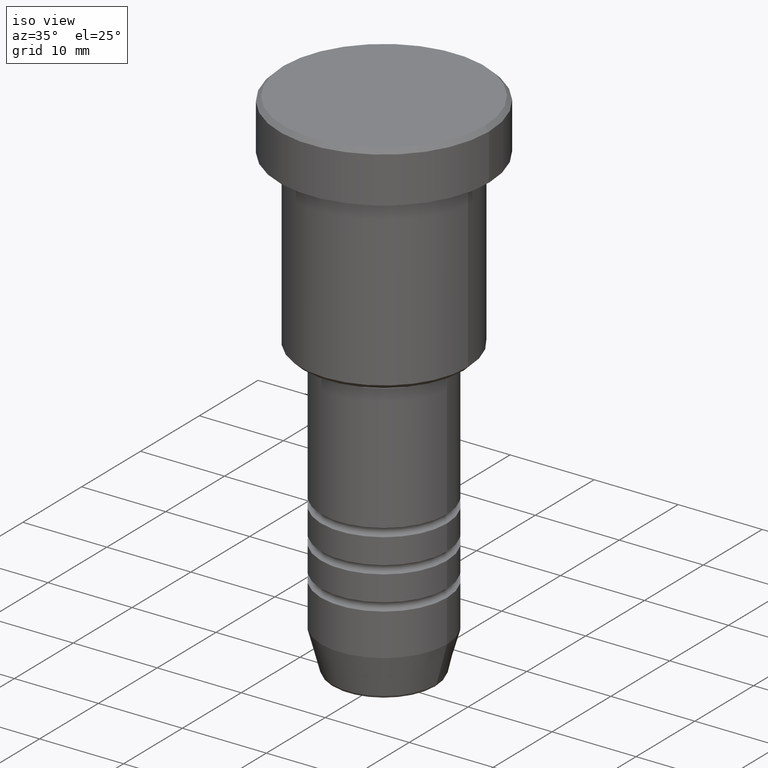
[diagram: clean part render]
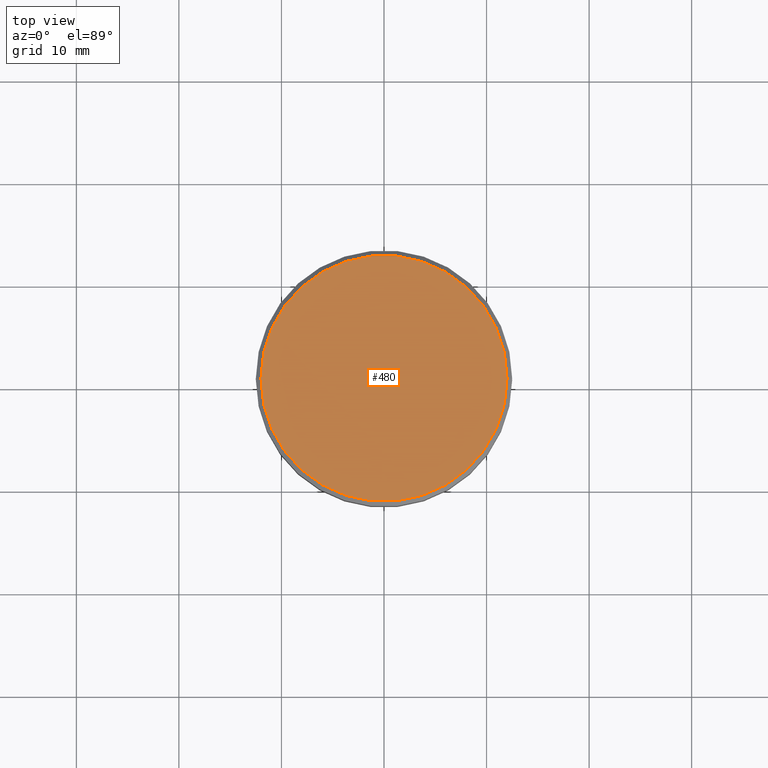
[diagram: tour spotlight — one face highlighted and labeled with its STEP entity id]
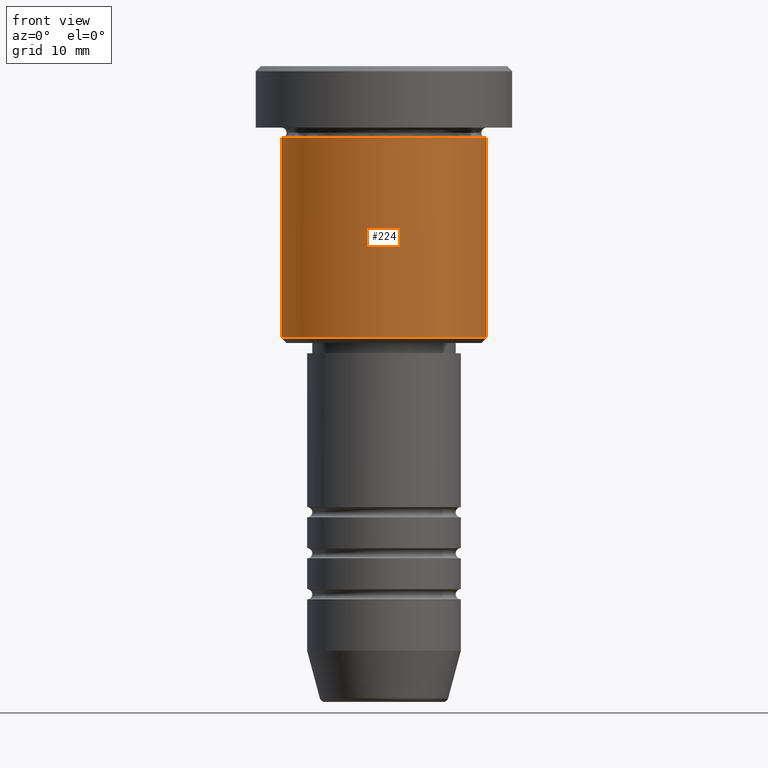
[diagram: tour spotlight — one face highlighted and labeled with its STEP entity id]
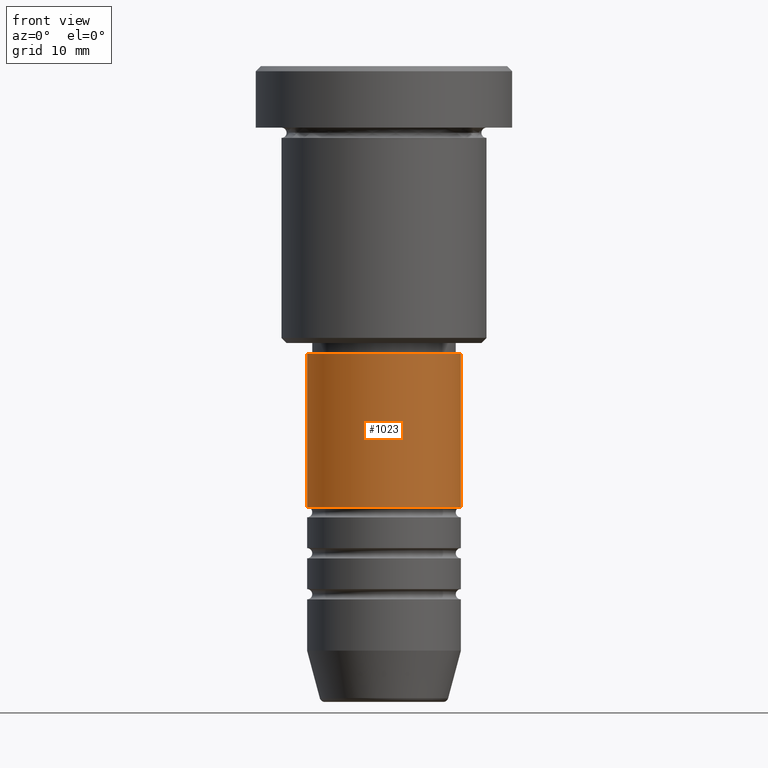
[diagram: tour spotlight — one face highlighted and labeled with its STEP entity id]
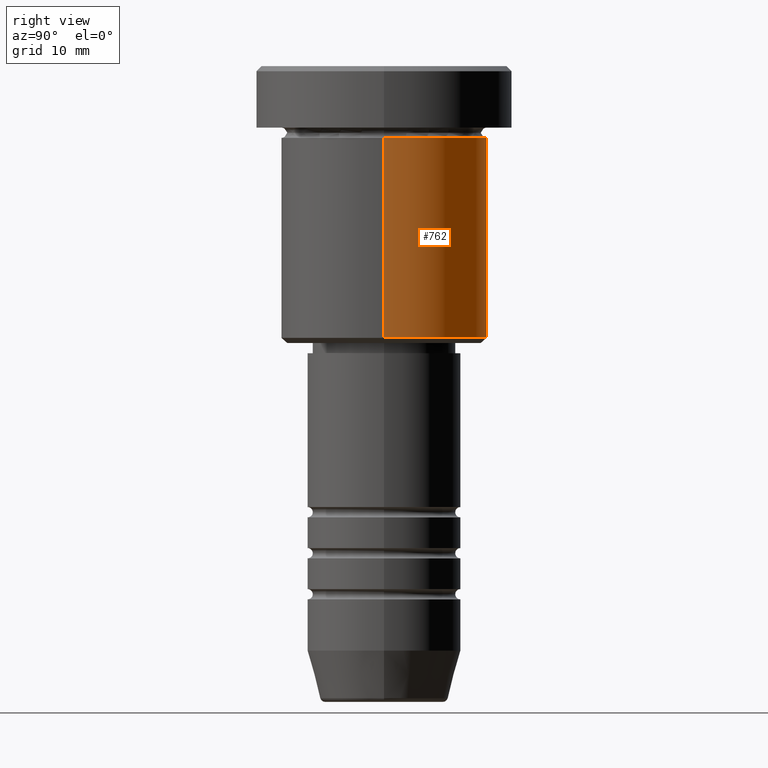
[diagram: tour spotlight — one face highlighted and labeled with its STEP entity id]
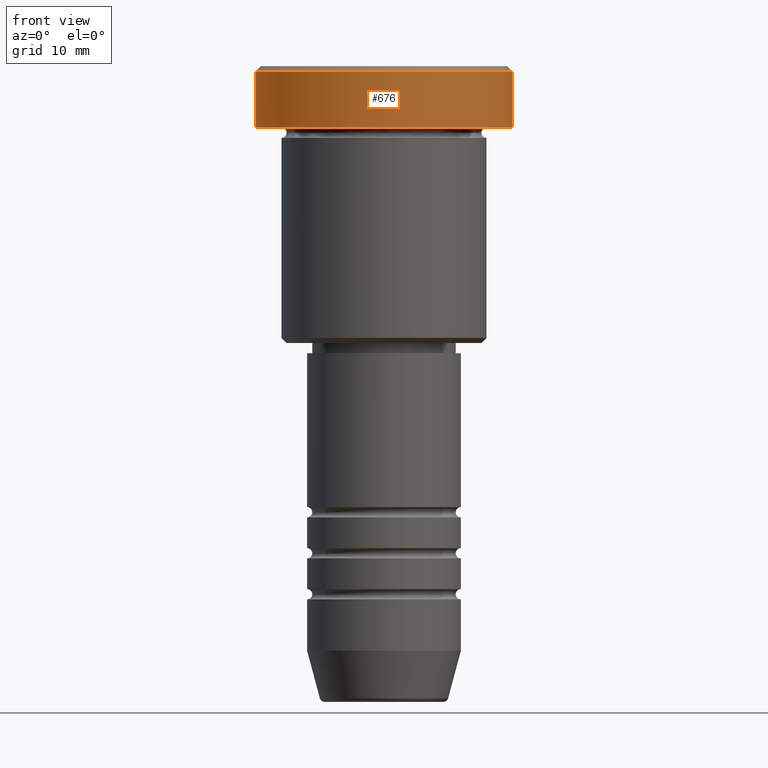
[diagram: tour spotlight — one face highlighted and labeled with its STEP entity id]
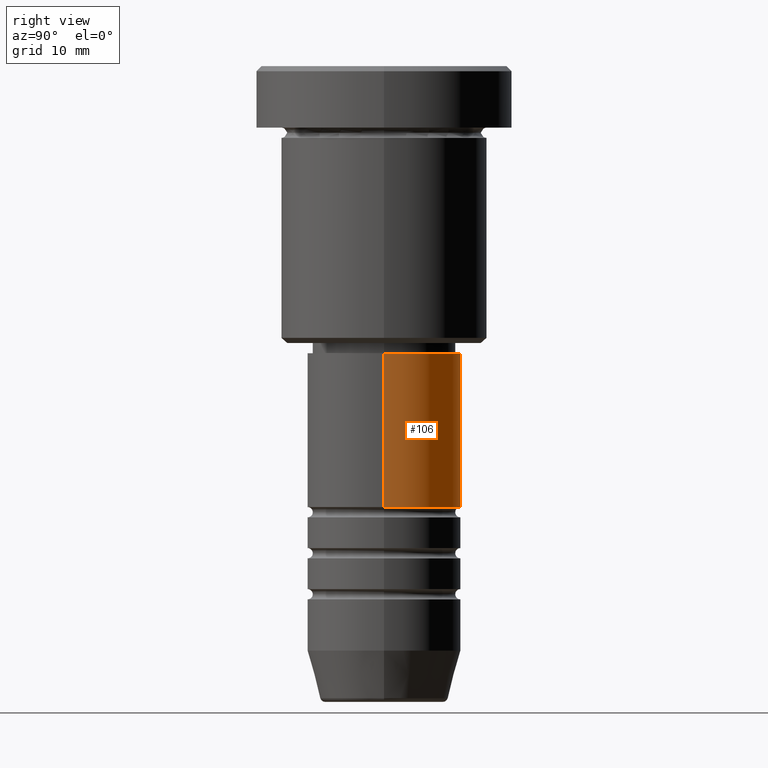
[diagram: tour spotlight — one face highlighted and labeled with its STEP entity id]
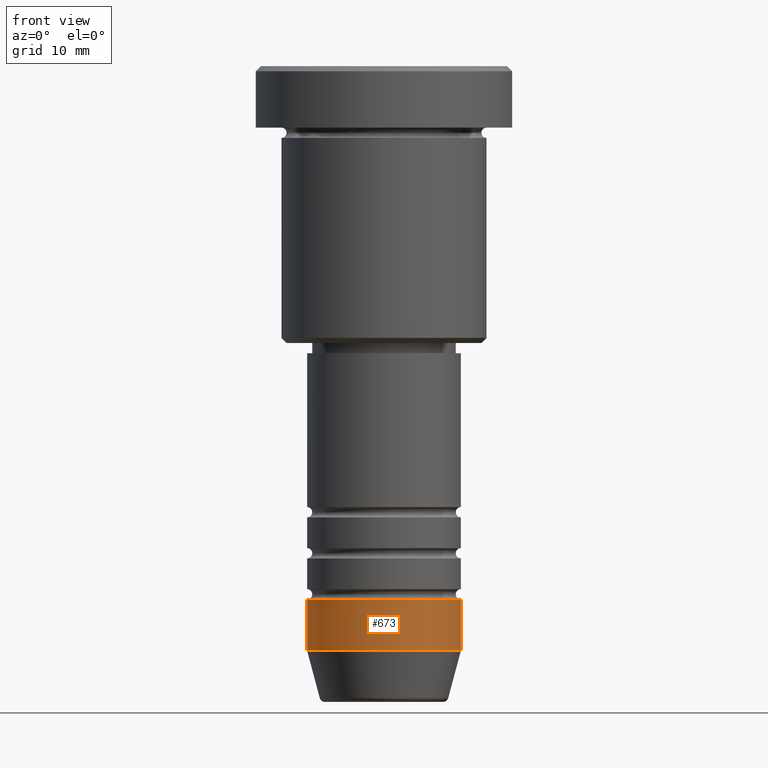
[diagram: tour spotlight — one face highlighted and labeled with its STEP entity id]
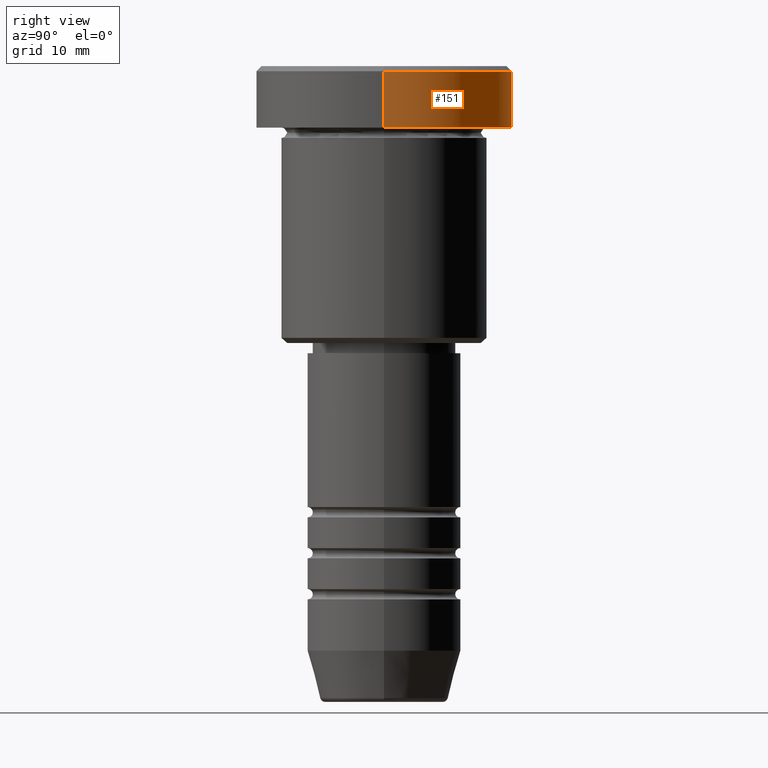
[diagram: tour spotlight — one face highlighted and labeled with its STEP entity id]
A machine part: a face-by-face anatomy tour. The part has 43 B-rep faces; the first image is the clean iso view, then the 8 largest visible faces are spotlighted one at a time (largest first), each with its STEP entity span.

Face 1 — top view, entity #480. In plain terms, the highlighted planar face has unit normal (0, -0, 1).
Definition (entity closure, byte-faithful):
#75 = CARTESIAN_POINT ( 'NONE',  ( 11.99999999999999645, 1.500192328955507537E-15, 0.000000000000000000 ) ) ;
#130 = PLANE ( 'NONE',  #269 ) ;
#140 = DIRECTION ( 'NONE',  ( -0.000000000000000000, -0.000000000000000000, 1.000000000000000000 ) ) ;
#269 = AXIS2_PLACEMENT_3D ( 'NONE', #982, #1157, #324 ) ;
#313 = EDGE_CURVE ( 'NONE', #847, #807, #948, .T. ) ;
#324 = DIRECTION ( 'NONE',  ( 1.000000000000000000, 0.000000000000000000, 0.000000000000000000 ) ) ;
#358 = ORIENTED_EDGE ( 'NONE', *, *, #721, .T. ) ;
#411 = DIRECTION ( 'NONE',  ( -0.000000000000000000, -0.000000000000000000, 1.000000000000000000 ) ) ;
#480 = ADVANCED_FACE ( 'NONE', ( #611 ), #130, .T. ) ;
#506 = ORIENTED_EDGE ( 'NONE', *, *, #313, .T. ) ;
#508 = EDGE_LOOP ( 'NONE', ( #358, #506 ) ) ;
#579 = CIRCLE ( 'NONE', #672, 11.99999999999999645 ) ;
#595 = DIRECTION ( 'NONE',  ( 1.000000000000000000, 0.000000000000000000, 0.000000000000000000 ) ) ;
#611 = FACE_OUTER_BOUND ( 'NONE', #508, .T. ) ;
#672 = AXIS2_PLACEMENT_3D ( 'NONE', #767, #411, #595 ) ;
#721 = EDGE_CURVE ( 'NONE', #807, #847, #579, .T. ) ;
#767 = CARTESIAN_POINT ( 'NONE',  ( 0.000000000000000000, 0.000000000000000000, 0.000000000000000000 ) ) ;
#807 = VERTEX_POINT ( 'NONE', #869 ) ;
#847 = VERTEX_POINT ( 'NONE', #75 ) ;
#869 = CARTESIAN_POINT ( 'NONE',  ( -11.99999999999999645, 0.000000000000000000, 0.000000000000000000 ) ) ;
#948 = CIRCLE ( 'NONE', #1039, 11.99999999999999645 ) ;
#975 = CARTESIAN_POINT ( 'NONE',  ( 0.000000000000000000, 0.000000000000000000, 0.000000000000000000 ) ) ;
#982 = CARTESIAN_POINT ( 'NONE',  ( 0.000000000000000000, 0.000000000000000000, 0.000000000000000000 ) ) ;
#1039 = AXIS2_PLACEMENT_3D ( 'NONE', #975, #140, #1160 ) ;
#1157 = DIRECTION ( 'NONE',  ( 0.000000000000000000, -0.000000000000000000, 1.000000000000000000 ) ) ;
#1160 = DIRECTION ( 'NONE',  ( 1.000000000000000000, 0.000000000000000000, 0.000000000000000000 ) ) ;

Face 2 — front view, entity #224. In plain terms, the highlighted cylindrical surface (partial cylindrical patch) has radius 10 mm, axis along (-0, -0, 1).
Definition (entity closure, byte-faithful):
#5 = CIRCLE ( 'NONE', #940, 10.00000000000000000 ) ;
#86 = ORIENTED_EDGE ( 'NONE', *, *, #1164, .T. ) ;
#110 = DIRECTION ( 'NONE',  ( 1.000000000000000000, 0.000000000000000000, 0.000000000000000000 ) ) ;
#124 = AXIS2_PLACEMENT_3D ( 'NONE', #400, #755, #578 ) ;
#164 = EDGE_CURVE ( 'NONE', #703, #795, #204, .T. ) ;
#204 = LINE ( 'NONE', #1118, #843 ) ;
#210 = DIRECTION ( 'NONE',  ( -0.000000000000000000, -0.000000000000000000, 1.000000000000000000 ) ) ;
#215 = FACE_OUTER_BOUND ( 'NONE', #687, .T. ) ;
#218 = LINE ( 'NONE', #946, #943 ) ;
#224 = ADVANCED_FACE ( 'NONE', ( #215 ), #588, .T. ) ;
#375 = VERTEX_POINT ( 'NONE', #893 ) ;
#400 = CARTESIAN_POINT ( 'NONE',  ( 0.000000000000000000, 0.000000000000000000, 0.000000000000000000 ) ) ;
#401 = ORIENTED_EDGE ( 'NONE', *, *, #682, .F. ) ;
#428 = AXIS2_PLACEMENT_3D ( 'NONE', #1016, #931, #110 ) ;
#446 = DIRECTION ( 'NONE',  ( -0.000000000000000000, -0.000000000000000000, 1.000000000000000000 ) ) ;
#578 = DIRECTION ( 'NONE',  ( 1.000000000000000000, 0.000000000000000000, 0.000000000000000000 ) ) ;
#584 = CARTESIAN_POINT ( 'NONE',  ( 10.00000000000000000, 0.000000000000000000, -26.50000000000000355 ) ) ;
#588 = CYLINDRICAL_SURFACE ( 'NONE', #124, 10.00000000000000000 ) ;
#602 = CARTESIAN_POINT ( 'NONE',  ( 0.000000000000000000, 0.000000000000000000, -26.50000000000000355 ) ) ;
#671 = CARTESIAN_POINT ( 'NONE',  ( 10.00000000000000000, 0.000000000000000000, -6.999999999999996447 ) ) ;
#682 = EDGE_CURVE ( 'NONE', #873, #795, #1151, .T. ) ;
#687 = EDGE_LOOP ( 'NONE', ( #947, #86, #897, #401 ) ) ;
#694 = DIRECTION ( 'NONE',  ( -0.000000000000000000, -0.000000000000000000, 1.000000000000000000 ) ) ;
#697 = DIRECTION ( 'NONE',  ( -1.000000000000000000, 0.000000000000000000, 0.000000000000000000 ) ) ;
#703 = VERTEX_POINT ( 'NONE', #584 ) ;
#755 = DIRECTION ( 'NONE',  ( -0.000000000000000000, -0.000000000000000000, 1.000000000000000000 ) ) ;
#756 = EDGE_CURVE ( 'NONE', #375, #873, #218, .T. ) ;
#795 = VERTEX_POINT ( 'NONE', #671 ) ;
#843 = VECTOR ( 'NONE', #210, 1000.000000000000000 ) ;
#873 = VERTEX_POINT ( 'NONE', #1152 ) ;
#893 = CARTESIAN_POINT ( 'NONE',  ( -10.00000000000000000, 1.224646799147353256E-15, -26.50000000000000355 ) ) ;
#897 = ORIENTED_EDGE ( 'NONE', *, *, #164, .T. ) ;
#931 = DIRECTION ( 'NONE',  ( -0.000000000000000000, -0.000000000000000000, 1.000000000000000000 ) ) ;
#940 = AXIS2_PLACEMENT_3D ( 'NONE', #602, #446, #697 ) ;
#943 = VECTOR ( 'NONE', #694, 1000.000000000000000 ) ;
#946 = CARTESIAN_POINT ( 'NONE',  ( -10.00000000000000000, 1.224646799147353256E-15, 0.000000000000000000 ) ) ;
#947 = ORIENTED_EDGE ( 'NONE', *, *, #756, .F. ) ;
#1016 = CARTESIAN_POINT ( 'NONE',  ( 0.000000000000000000, 0.000000000000000000, -6.999999999999996447 ) ) ;
#1118 = CARTESIAN_POINT ( 'NONE',  ( 10.00000000000000000, 0.000000000000000000, 0.000000000000000000 ) ) ;
#1151 = CIRCLE ( 'NONE', #428, 10.00000000000000000 ) ;
#1152 = CARTESIAN_POINT ( 'NONE',  ( -10.00000000000000000, 1.224646799147353256E-15, -6.999999999999996447 ) ) ;
#1164 = EDGE_CURVE ( 'NONE', #375, #703, #5, .T. ) ;

Face 3 — front view, entity #1023. In plain terms, the highlighted cylindrical surface (partial cylindrical patch) has radius 7.5 mm, axis along (-0, -0, 1).
Definition (entity closure, byte-faithful):
#4 = ORIENTED_EDGE ( 'NONE', *, *, #818, .T. ) ;
#11 = EDGE_CURVE ( 'NONE', #346, #410, #904, .T. ) ;
#54 = ORIENTED_EDGE ( 'NONE', *, *, #11, .F. ) ;
#117 = DIRECTION ( 'NONE',  ( 1.000000000000000000, 0.000000000000000000, 0.000000000000000000 ) ) ;
#153 = CARTESIAN_POINT ( 'NONE',  ( -7.500000000000001776, 9.184850993605149917E-16, -42.99999999999989342 ) ) ;
#159 = LINE ( 'NONE', #347, #768 ) ;
#180 = CARTESIAN_POINT ( 'NONE',  ( -7.500000000000000000, 9.184850993605147944E-16, -27.99999999999999645 ) ) ;
#235 = DIRECTION ( 'NONE',  ( 1.000000000000000000, 0.000000000000000000, 0.000000000000000000 ) ) ;
#305 = CYLINDRICAL_SURFACE ( 'NONE', #858, 7.500000000000000000 ) ;
#336 = DIRECTION ( 'NONE',  ( -0.000000000000000000, -0.000000000000000000, 1.000000000000000000 ) ) ;
#346 = VERTEX_POINT ( 'NONE', #153 ) ;
#347 = CARTESIAN_POINT ( 'NONE',  ( 7.500000000000000000, 0.000000000000000000, 0.000000000000000000 ) ) ;
#373 = DIRECTION ( 'NONE',  ( -0.000000000000000000, -0.000000000000000000, 1.000000000000000000 ) ) ;
#378 = CARTESIAN_POINT ( 'NONE',  ( -7.500000000000000000, 9.184850993605147944E-16, 0.000000000000000000 ) ) ;
#410 = VERTEX_POINT ( 'NONE', #180 ) ;
#459 = DIRECTION ( 'NONE',  ( -0.000000000000000000, -0.000000000000000000, 1.000000000000000000 ) ) ;
#469 = CARTESIAN_POINT ( 'NONE',  ( 7.500000000000000000, 0.000000000000000000, -27.99999999999999645 ) ) ;
#489 = VECTOR ( 'NONE', #373, 1000.000000000000000 ) ;
#490 = DIRECTION ( 'NONE',  ( 1.000000000000000000, 0.000000000000000000, 0.000000000000000000 ) ) ;
#503 = ORIENTED_EDGE ( 'NONE', *, *, #882, .T. ) ;
#509 = CARTESIAN_POINT ( 'NONE',  ( 0.000000000000000000, 0.000000000000000000, -42.99999999999989342 ) ) ;
#527 = AXIS2_PLACEMENT_3D ( 'NONE', #509, #336, #235 ) ;
#533 = VERTEX_POINT ( 'NONE', #469 ) ;
#583 = DIRECTION ( 'NONE',  ( -0.000000000000000000, -0.000000000000000000, 1.000000000000000000 ) ) ;
#593 = EDGE_CURVE ( 'NONE', #410, #533, #654, .T. ) ;
#594 = ORIENTED_EDGE ( 'NONE', *, *, #593, .F. ) ;
#617 = VERTEX_POINT ( 'NONE', #785 ) ;
#654 = CIRCLE ( 'NONE', #1107, 7.500000000000000000 ) ;
#748 = CARTESIAN_POINT ( 'NONE',  ( 0.000000000000000000, 0.000000000000000000, -27.99999999999999645 ) ) ;
#751 = FACE_OUTER_BOUND ( 'NONE', #974, .T. ) ;
#768 = VECTOR ( 'NONE', #459, 1000.000000000000000 ) ;
#785 = CARTESIAN_POINT ( 'NONE',  ( 7.500000000000000888, 0.000000000000000000, -42.99999999999989342 ) ) ;
#818 = EDGE_CURVE ( 'NONE', #617, #533, #159, .T. ) ;
#858 = AXIS2_PLACEMENT_3D ( 'NONE', #1035, #583, #490 ) ;
#882 = EDGE_CURVE ( 'NONE', #346, #617, #913, .T. ) ;
#904 = LINE ( 'NONE', #378, #489 ) ;
#913 = CIRCLE ( 'NONE', #527, 7.500000000000000888 ) ;
#938 = DIRECTION ( 'NONE',  ( -0.000000000000000000, -0.000000000000000000, 1.000000000000000000 ) ) ;
#974 = EDGE_LOOP ( 'NONE', ( #54, #503, #4, #594 ) ) ;
#1023 = ADVANCED_FACE ( 'NONE', ( #751 ), #305, .T. ) ;
#1035 = CARTESIAN_POINT ( 'NONE',  ( 0.000000000000000000, 0.000000000000000000, 0.000000000000000000 ) ) ;
#1107 = AXIS2_PLACEMENT_3D ( 'NONE', #748, #938, #117 ) ;

Face 4 — right view, entity #762. In plain terms, the highlighted cylindrical surface (partial cylindrical patch) has radius 10 mm, axis along (-0, -0, 1).
Definition (entity closure, byte-faithful):
#55 = CYLINDRICAL_SURFACE ( 'NONE', #566, 10.00000000000000000 ) ;
#63 = DIRECTION ( 'NONE',  ( -1.000000000000000000, 0.000000000000000000, 0.000000000000000000 ) ) ;
#65 = ORIENTED_EDGE ( 'NONE', *, *, #756, .T. ) ;
#164 = EDGE_CURVE ( 'NONE', #703, #795, #204, .T. ) ;
#191 = DIRECTION ( 'NONE',  ( -0.000000000000000000, -0.000000000000000000, 1.000000000000000000 ) ) ;
#204 = LINE ( 'NONE', #1118, #843 ) ;
#210 = DIRECTION ( 'NONE',  ( -0.000000000000000000, -0.000000000000000000, 1.000000000000000000 ) ) ;
#211 = CIRCLE ( 'NONE', #569, 10.00000000000000000 ) ;
#218 = LINE ( 'NONE', #946, #943 ) ;
#231 = ORIENTED_EDGE ( 'NONE', *, *, #164, .F. ) ;
#240 = DIRECTION ( 'NONE',  ( -0.000000000000000000, -0.000000000000000000, 1.000000000000000000 ) ) ;
#365 = DIRECTION ( 'NONE',  ( -0.000000000000000000, -0.000000000000000000, 1.000000000000000000 ) ) ;
#375 = VERTEX_POINT ( 'NONE', #893 ) ;
#391 = AXIS2_PLACEMENT_3D ( 'NONE', #789, #191, #1008 ) ;
#398 = EDGE_CURVE ( 'NONE', #795, #873, #609, .T. ) ;
#566 = AXIS2_PLACEMENT_3D ( 'NONE', #1032, #240, #610 ) ;
#569 = AXIS2_PLACEMENT_3D ( 'NONE', #814, #365, #63 ) ;
#584 = CARTESIAN_POINT ( 'NONE',  ( 10.00000000000000000, 0.000000000000000000, -26.50000000000000355 ) ) ;
#609 = CIRCLE ( 'NONE', #391, 10.00000000000000000 ) ;
#610 = DIRECTION ( 'NONE',  ( 1.000000000000000000, 0.000000000000000000, 0.000000000000000000 ) ) ;
#671 = CARTESIAN_POINT ( 'NONE',  ( 10.00000000000000000, 0.000000000000000000, -6.999999999999996447 ) ) ;
#694 = DIRECTION ( 'NONE',  ( -0.000000000000000000, -0.000000000000000000, 1.000000000000000000 ) ) ;
#703 = VERTEX_POINT ( 'NONE', #584 ) ;
#756 = EDGE_CURVE ( 'NONE', #375, #873, #218, .T. ) ;
#762 = ADVANCED_FACE ( 'NONE', ( #879 ), #55, .T. ) ;
#789 = CARTESIAN_POINT ( 'NONE',  ( 0.000000000000000000, 0.000000000000000000, -6.999999999999996447 ) ) ;
#795 = VERTEX_POINT ( 'NONE', #671 ) ;
#814 = CARTESIAN_POINT ( 'NONE',  ( 0.000000000000000000, 0.000000000000000000, -26.50000000000000355 ) ) ;
#843 = VECTOR ( 'NONE', #210, 1000.000000000000000 ) ;
#873 = VERTEX_POINT ( 'NONE', #1152 ) ;
#879 = FACE_OUTER_BOUND ( 'NONE', #1049, .T. ) ;
#893 = CARTESIAN_POINT ( 'NONE',  ( -10.00000000000000000, 1.224646799147353256E-15, -26.50000000000000355 ) ) ;
#928 = EDGE_CURVE ( 'NONE', #703, #375, #211, .T. ) ;
#929 = ORIENTED_EDGE ( 'NONE', *, *, #398, .F. ) ;
#943 = VECTOR ( 'NONE', #694, 1000.000000000000000 ) ;
#946 = CARTESIAN_POINT ( 'NONE',  ( -10.00000000000000000, 1.224646799147353256E-15, 0.000000000000000000 ) ) ;
#1008 = DIRECTION ( 'NONE',  ( 1.000000000000000000, 0.000000000000000000, 0.000000000000000000 ) ) ;
#1032 = CARTESIAN_POINT ( 'NONE',  ( 0.000000000000000000, 0.000000000000000000, 0.000000000000000000 ) ) ;
#1049 = EDGE_LOOP ( 'NONE', ( #1086, #65, #929, #231 ) ) ;
#1086 = ORIENTED_EDGE ( 'NONE', *, *, #928, .T. ) ;
#1118 = CARTESIAN_POINT ( 'NONE',  ( 10.00000000000000000, 0.000000000000000000, 0.000000000000000000 ) ) ;
#1152 = CARTESIAN_POINT ( 'NONE',  ( -10.00000000000000000, 1.224646799147353256E-15, -6.999999999999996447 ) ) ;

Face 5 — front view, entity #676. In plain terms, the highlighted cylindrical surface (partial cylindrical patch) has radius 12.5 mm, axis along (-0, -0, 1).
Definition (entity closure, byte-faithful):
#12 = DIRECTION ( 'NONE',  ( -0.000000000000000000, -0.000000000000000000, 1.000000000000000000 ) ) ;
#31 = EDGE_CURVE ( 'NONE', #1149, #811, #631, .T. ) ;
#46 = VECTOR ( 'NONE', #642, 1000.000000000000000 ) ;
#92 = CARTESIAN_POINT ( 'NONE',  ( -12.50000000000000000, 1.530808498934191521E-15, -0.5000000000000056621 ) ) ;
#95 = EDGE_CURVE ( 'NONE', #431, #811, #834, .T. ) ;
#236 = DIRECTION ( 'NONE',  ( 1.000000000000000000, 0.000000000000000000, 0.000000000000000000 ) ) ;
#246 = VECTOR ( 'NONE', #954, 1000.000000000000000 ) ;
#284 = EDGE_CURVE ( 'NONE', #431, #1012, #286, .T. ) ;
#286 = CIRCLE ( 'NONE', #698, 12.50000000000000000 ) ;
#288 = DIRECTION ( 'NONE',  ( 1.000000000000000000, 0.000000000000000000, 0.000000000000000000 ) ) ;
#389 = ORIENTED_EDGE ( 'NONE', *, *, #1068, .T. ) ;
#431 = VERTEX_POINT ( 'NONE', #998 ) ;
#474 = CYLINDRICAL_SURFACE ( 'NONE', #623, 12.50000000000000000 ) ;
#544 = DIRECTION ( 'NONE',  ( 0.000000000000000000, 0.000000000000000000, -1.000000000000000000 ) ) ;
#559 = FACE_OUTER_BOUND ( 'NONE', #679, .T. ) ;
#606 = CARTESIAN_POINT ( 'NONE',  ( 12.50000000000000000, 0.000000000000000000, 0.000000000000000000 ) ) ;
#623 = AXIS2_PLACEMENT_3D ( 'NONE', #837, #12, #741 ) ;
#631 = CIRCLE ( 'NONE', #1058, 12.50000000000000000 ) ;
#642 = DIRECTION ( 'NONE',  ( -0.000000000000000000, -0.000000000000000000, 1.000000000000000000 ) ) ;
#676 = ADVANCED_FACE ( 'NONE', ( #559 ), #474, .T. ) ;
#679 = EDGE_LOOP ( 'NONE', ( #1101, #717, #389, #765 ) ) ;
#698 = AXIS2_PLACEMENT_3D ( 'NONE', #1144, #865, #236 ) ;
#717 = ORIENTED_EDGE ( 'NONE', *, *, #284, .T. ) ;
#729 = CARTESIAN_POINT ( 'NONE',  ( 0.000000000000000000, 0.000000000000000000, -0.5000000000000056621 ) ) ;
#741 = DIRECTION ( 'NONE',  ( 1.000000000000000000, 0.000000000000000000, 0.000000000000000000 ) ) ;
#765 = ORIENTED_EDGE ( 'NONE', *, *, #31, .T. ) ;
#811 = VERTEX_POINT ( 'NONE', #92 ) ;
#819 = CARTESIAN_POINT ( 'NONE',  ( -12.50000000000000000, 1.530808498934191521E-15, 0.000000000000000000 ) ) ;
#830 = CARTESIAN_POINT ( 'NONE',  ( 12.50000000000000000, 0.000000000000000000, -5.999999999999996447 ) ) ;
#834 = LINE ( 'NONE', #819, #46 ) ;
#837 = CARTESIAN_POINT ( 'NONE',  ( 0.000000000000000000, 0.000000000000000000, 0.000000000000000000 ) ) ;
#865 = DIRECTION ( 'NONE',  ( -0.000000000000000000, -0.000000000000000000, 1.000000000000000000 ) ) ;
#954 = DIRECTION ( 'NONE',  ( -0.000000000000000000, -0.000000000000000000, 1.000000000000000000 ) ) ;
#998 = CARTESIAN_POINT ( 'NONE',  ( -12.50000000000000000, 1.530808498934191521E-15, -5.999999999999996447 ) ) ;
#1012 = VERTEX_POINT ( 'NONE', #830 ) ;
#1058 = AXIS2_PLACEMENT_3D ( 'NONE', #729, #544, #288 ) ;
#1068 = EDGE_CURVE ( 'NONE', #1012, #1149, #1080, .T. ) ;
#1080 = LINE ( 'NONE', #606, #246 ) ;
#1101 = ORIENTED_EDGE ( 'NONE', *, *, #95, .F. ) ;
#1144 = CARTESIAN_POINT ( 'NONE',  ( 0.000000000000000000, 0.000000000000000000, -5.999999999999996447 ) ) ;
#1149 = VERTEX_POINT ( 'NONE', #1169 ) ;
#1169 = CARTESIAN_POINT ( 'NONE',  ( 12.50000000000000000, 0.000000000000000000, -0.5000000000000056621 ) ) ;

Face 6 — right view, entity #106. In plain terms, the highlighted cylindrical surface (partial cylindrical patch) has radius 7.5 mm, axis along (-0, -0, 1).
Definition (entity closure, byte-faithful):
#11 = EDGE_CURVE ( 'NONE', #346, #410, #904, .T. ) ;
#40 = EDGE_LOOP ( 'NONE', ( #878, #649, #94, #440 ) ) ;
#64 = DIRECTION ( 'NONE',  ( -0.000000000000000000, -0.000000000000000000, 1.000000000000000000 ) ) ;
#94 = ORIENTED_EDGE ( 'NONE', *, *, #735, .F. ) ;
#106 = ADVANCED_FACE ( 'NONE', ( #363 ), #1090, .T. ) ;
#153 = CARTESIAN_POINT ( 'NONE',  ( -7.500000000000001776, 9.184850993605149917E-16, -42.99999999999989342 ) ) ;
#159 = LINE ( 'NONE', #347, #768 ) ;
#180 = CARTESIAN_POINT ( 'NONE',  ( -7.500000000000000000, 9.184850993605147944E-16, -27.99999999999999645 ) ) ;
#255 = CARTESIAN_POINT ( 'NONE',  ( 0.000000000000000000, 0.000000000000000000, -42.99999999999989342 ) ) ;
#267 = AXIS2_PLACEMENT_3D ( 'NONE', #548, #556, #445 ) ;
#329 = CIRCLE ( 'NONE', #835, 7.500000000000000000 ) ;
#341 = EDGE_CURVE ( 'NONE', #617, #346, #368, .T. ) ;
#346 = VERTEX_POINT ( 'NONE', #153 ) ;
#347 = CARTESIAN_POINT ( 'NONE',  ( 7.500000000000000000, 0.000000000000000000, 0.000000000000000000 ) ) ;
#363 = FACE_OUTER_BOUND ( 'NONE', #40, .T. ) ;
#368 = CIRCLE ( 'NONE', #512, 7.500000000000000888 ) ;
#373 = DIRECTION ( 'NONE',  ( -0.000000000000000000, -0.000000000000000000, 1.000000000000000000 ) ) ;
#378 = CARTESIAN_POINT ( 'NONE',  ( -7.500000000000000000, 9.184850993605147944E-16, 0.000000000000000000 ) ) ;
#410 = VERTEX_POINT ( 'NONE', #180 ) ;
#440 = ORIENTED_EDGE ( 'NONE', *, *, #818, .F. ) ;
#445 = DIRECTION ( 'NONE',  ( 1.000000000000000000, 0.000000000000000000, 0.000000000000000000 ) ) ;
#459 = DIRECTION ( 'NONE',  ( -0.000000000000000000, -0.000000000000000000, 1.000000000000000000 ) ) ;
#469 = CARTESIAN_POINT ( 'NONE',  ( 7.500000000000000000, 0.000000000000000000, -27.99999999999999645 ) ) ;
#489 = VECTOR ( 'NONE', #373, 1000.000000000000000 ) ;
#504 = CARTESIAN_POINT ( 'NONE',  ( 0.000000000000000000, 0.000000000000000000, -27.99999999999999645 ) ) ;
#512 = AXIS2_PLACEMENT_3D ( 'NONE', #255, #622, #967 ) ;
#533 = VERTEX_POINT ( 'NONE', #469 ) ;
#548 = CARTESIAN_POINT ( 'NONE',  ( 0.000000000000000000, 0.000000000000000000, 0.000000000000000000 ) ) ;
#556 = DIRECTION ( 'NONE',  ( -0.000000000000000000, -0.000000000000000000, 1.000000000000000000 ) ) ;
#617 = VERTEX_POINT ( 'NONE', #785 ) ;
#622 = DIRECTION ( 'NONE',  ( -0.000000000000000000, -0.000000000000000000, 1.000000000000000000 ) ) ;
#649 = ORIENTED_EDGE ( 'NONE', *, *, #11, .T. ) ;
#735 = EDGE_CURVE ( 'NONE', #533, #410, #329, .T. ) ;
#768 = VECTOR ( 'NONE', #459, 1000.000000000000000 ) ;
#785 = CARTESIAN_POINT ( 'NONE',  ( 7.500000000000000888, 0.000000000000000000, -42.99999999999989342 ) ) ;
#818 = EDGE_CURVE ( 'NONE', #617, #533, #159, .T. ) ;
#835 = AXIS2_PLACEMENT_3D ( 'NONE', #504, #64, #971 ) ;
#878 = ORIENTED_EDGE ( 'NONE', *, *, #341, .T. ) ;
#904 = LINE ( 'NONE', #378, #489 ) ;
#967 = DIRECTION ( 'NONE',  ( 1.000000000000000000, 0.000000000000000000, 0.000000000000000000 ) ) ;
#971 = DIRECTION ( 'NONE',  ( 1.000000000000000000, 0.000000000000000000, 0.000000000000000000 ) ) ;
#1090 = CYLINDRICAL_SURFACE ( 'NONE', #267, 7.500000000000000000 ) ;

Face 7 — front view, entity #673. In plain terms, the highlighted cylindrical surface (partial cylindrical patch) has radius 7.5 mm, axis along (-0, -0, 1).
Definition (entity closure, byte-faithful):
#3 = LINE ( 'NONE', #867, #372 ) ;
#72 = LINE ( 'NONE', #81, #295 ) ;
#81 = CARTESIAN_POINT ( 'NONE',  ( 7.500000000000000000, 0.000000000000000000, 0.000000000000000000 ) ) ;
#100 = CARTESIAN_POINT ( 'NONE',  ( -7.500000000000000000, 9.184850993605147944E-16, -57.00000000000000000 ) ) ;
#144 = CIRCLE ( 'NONE', #740, 7.500000000000000000 ) ;
#174 = VERTEX_POINT ( 'NONE', #1129 ) ;
#179 = ORIENTED_EDGE ( 'NONE', *, *, #1155, .T. ) ;
#192 = EDGE_CURVE ( 'NONE', #980, #1127, #144, .T. ) ;
#205 = FACE_OUTER_BOUND ( 'NONE', #482, .T. ) ;
#293 = DIRECTION ( 'NONE',  ( -0.000000000000000000, -0.000000000000000000, 1.000000000000000000 ) ) ;
#295 = VECTOR ( 'NONE', #321, 1000.000000000000000 ) ;
#311 = DIRECTION ( 'NONE',  ( -0.000000000000000000, -0.000000000000000000, 1.000000000000000000 ) ) ;
#321 = DIRECTION ( 'NONE',  ( -0.000000000000000000, -0.000000000000000000, 1.000000000000000000 ) ) ;
#372 = VECTOR ( 'NONE', #803, 1000.000000000000000 ) ;
#395 = CARTESIAN_POINT ( 'NONE',  ( 0.000000000000000000, 0.000000000000000000, -57.00000000000000000 ) ) ;
#454 = ORIENTED_EDGE ( 'NONE', *, *, #464, .F. ) ;
#457 = VERTEX_POINT ( 'NONE', #838 ) ;
#464 = EDGE_CURVE ( 'NONE', #174, #457, #968, .T. ) ;
#482 = EDGE_LOOP ( 'NONE', ( #1074, #662, #179, #454 ) ) ;
#576 = CYLINDRICAL_SURFACE ( 'NONE', #942, 7.500000000000000000 ) ;
#662 = ORIENTED_EDGE ( 'NONE', *, *, #192, .T. ) ;
#673 = ADVANCED_FACE ( 'NONE', ( #205 ), #576, .T. ) ;
#683 = CARTESIAN_POINT ( 'NONE',  ( 7.500000000000000000, 0.000000000000000000, -57.00000000000000000 ) ) ;
#740 = AXIS2_PLACEMENT_3D ( 'NONE', #395, #311, #752 ) ;
#752 = DIRECTION ( 'NONE',  ( 1.000000000000000000, 0.000000000000000000, 0.000000000000000000 ) ) ;
#763 = DIRECTION ( 'NONE',  ( -0.000000000000000000, -0.000000000000000000, 1.000000000000000000 ) ) ;
#803 = DIRECTION ( 'NONE',  ( -0.000000000000000000, -0.000000000000000000, 1.000000000000000000 ) ) ;
#838 = CARTESIAN_POINT ( 'NONE',  ( 7.500000000000000000, 0.000000000000000000, -52.00000000000000711 ) ) ;
#867 = CARTESIAN_POINT ( 'NONE',  ( -7.500000000000000000, 9.184850993605147944E-16, 0.000000000000000000 ) ) ;
#942 = AXIS2_PLACEMENT_3D ( 'NONE', #1121, #763, #1125 ) ;
#968 = CIRCLE ( 'NONE', #1025, 7.500000000000000000 ) ;
#980 = VERTEX_POINT ( 'NONE', #100 ) ;
#1013 = EDGE_CURVE ( 'NONE', #980, #174, #3, .T. ) ;
#1025 = AXIS2_PLACEMENT_3D ( 'NONE', #1111, #293, #1172 ) ;
#1074 = ORIENTED_EDGE ( 'NONE', *, *, #1013, .F. ) ;
#1111 = CARTESIAN_POINT ( 'NONE',  ( 0.000000000000000000, 0.000000000000000000, -52.00000000000000711 ) ) ;
#1121 = CARTESIAN_POINT ( 'NONE',  ( 0.000000000000000000, 0.000000000000000000, 0.000000000000000000 ) ) ;
#1125 = DIRECTION ( 'NONE',  ( 1.000000000000000000, 0.000000000000000000, 0.000000000000000000 ) ) ;
#1127 = VERTEX_POINT ( 'NONE', #683 ) ;
#1129 = CARTESIAN_POINT ( 'NONE',  ( -7.500000000000000000, 9.184850993605147944E-16, -52.00000000000000711 ) ) ;
#1155 = EDGE_CURVE ( 'NONE', #1127, #457, #72, .T. ) ;
#1172 = DIRECTION ( 'NONE',  ( 1.000000000000000000, 0.000000000000000000, 0.000000000000000000 ) ) ;

Face 8 — right view, entity #151. In plain terms, the highlighted cylindrical surface (partial cylindrical patch) has radius 12.5 mm, axis along (-0, -0, 1).
Definition (entity closure, byte-faithful):
#34 = CIRCLE ( 'NONE', #648, 12.50000000000000000 ) ;
#46 = VECTOR ( 'NONE', #642, 1000.000000000000000 ) ;
#92 = CARTESIAN_POINT ( 'NONE',  ( -12.50000000000000000, 1.530808498934191521E-15, -0.5000000000000056621 ) ) ;
#95 = EDGE_CURVE ( 'NONE', #431, #811, #834, .T. ) ;
#145 = DIRECTION ( 'NONE',  ( 1.000000000000000000, 0.000000000000000000, 0.000000000000000000 ) ) ;
#151 = ADVANCED_FACE ( 'NONE', ( #770 ), #1115, .T. ) ;
#246 = VECTOR ( 'NONE', #954, 1000.000000000000000 ) ;
#287 = CIRCLE ( 'NONE', #370, 12.50000000000000000 ) ;
#298 = DIRECTION ( 'NONE',  ( 1.000000000000000000, 0.000000000000000000, 0.000000000000000000 ) ) ;
#304 = ORIENTED_EDGE ( 'NONE', *, *, #532, .T. ) ;
#370 = AXIS2_PLACEMENT_3D ( 'NONE', #957, #1085, #908 ) ;
#374 = CARTESIAN_POINT ( 'NONE',  ( 0.000000000000000000, 0.000000000000000000, -0.5000000000000056621 ) ) ;
#431 = VERTEX_POINT ( 'NONE', #998 ) ;
#447 = EDGE_LOOP ( 'NONE', ( #304, #977, #450, #599 ) ) ;
#450 = ORIENTED_EDGE ( 'NONE', *, *, #852, .T. ) ;
#532 = EDGE_CURVE ( 'NONE', #1012, #431, #287, .T. ) ;
#599 = ORIENTED_EDGE ( 'NONE', *, *, #1068, .F. ) ;
#606 = CARTESIAN_POINT ( 'NONE',  ( 12.50000000000000000, 0.000000000000000000, 0.000000000000000000 ) ) ;
#642 = DIRECTION ( 'NONE',  ( -0.000000000000000000, -0.000000000000000000, 1.000000000000000000 ) ) ;
#648 = AXIS2_PLACEMENT_3D ( 'NONE', #374, #1075, #145 ) ;
#668 = DIRECTION ( 'NONE',  ( -0.000000000000000000, -0.000000000000000000, 1.000000000000000000 ) ) ;
#770 = FACE_OUTER_BOUND ( 'NONE', #447, .T. ) ;
#811 = VERTEX_POINT ( 'NONE', #92 ) ;
#819 = CARTESIAN_POINT ( 'NONE',  ( -12.50000000000000000, 1.530808498934191521E-15, 0.000000000000000000 ) ) ;
#830 = CARTESIAN_POINT ( 'NONE',  ( 12.50000000000000000, 0.000000000000000000, -5.999999999999996447 ) ) ;
#834 = LINE ( 'NONE', #819, #46 ) ;
#852 = EDGE_CURVE ( 'NONE', #811, #1149, #34, .T. ) ;
#908 = DIRECTION ( 'NONE',  ( 1.000000000000000000, 0.000000000000000000, 0.000000000000000000 ) ) ;
#954 = DIRECTION ( 'NONE',  ( -0.000000000000000000, -0.000000000000000000, 1.000000000000000000 ) ) ;
#957 = CARTESIAN_POINT ( 'NONE',  ( 0.000000000000000000, 0.000000000000000000, -5.999999999999996447 ) ) ;
#977 = ORIENTED_EDGE ( 'NONE', *, *, #95, .T. ) ;
#992 = AXIS2_PLACEMENT_3D ( 'NONE', #1031, #668, #298 ) ;
#998 = CARTESIAN_POINT ( 'NONE',  ( -12.50000000000000000, 1.530808498934191521E-15, -5.999999999999996447 ) ) ;
#1012 = VERTEX_POINT ( 'NONE', #830 ) ;
#1031 = CARTESIAN_POINT ( 'NONE',  ( 0.000000000000000000, 0.000000000000000000, 0.000000000000000000 ) ) ;
#1068 = EDGE_CURVE ( 'NONE', #1012, #1149, #1080, .T. ) ;
#1075 = DIRECTION ( 'NONE',  ( 0.000000000000000000, 0.000000000000000000, -1.000000000000000000 ) ) ;
#1080 = LINE ( 'NONE', #606, #246 ) ;
#1085 = DIRECTION ( 'NONE',  ( -0.000000000000000000, -0.000000000000000000, 1.000000000000000000 ) ) ;
#1115 = CYLINDRICAL_SURFACE ( 'NONE', #992, 12.50000000000000000 ) ;
#1149 = VERTEX_POINT ( 'NONE', #1169 ) ;
#1169 = CARTESIAN_POINT ( 'NONE',  ( 12.50000000000000000, 0.000000000000000000, -0.5000000000000056621 ) ) ;